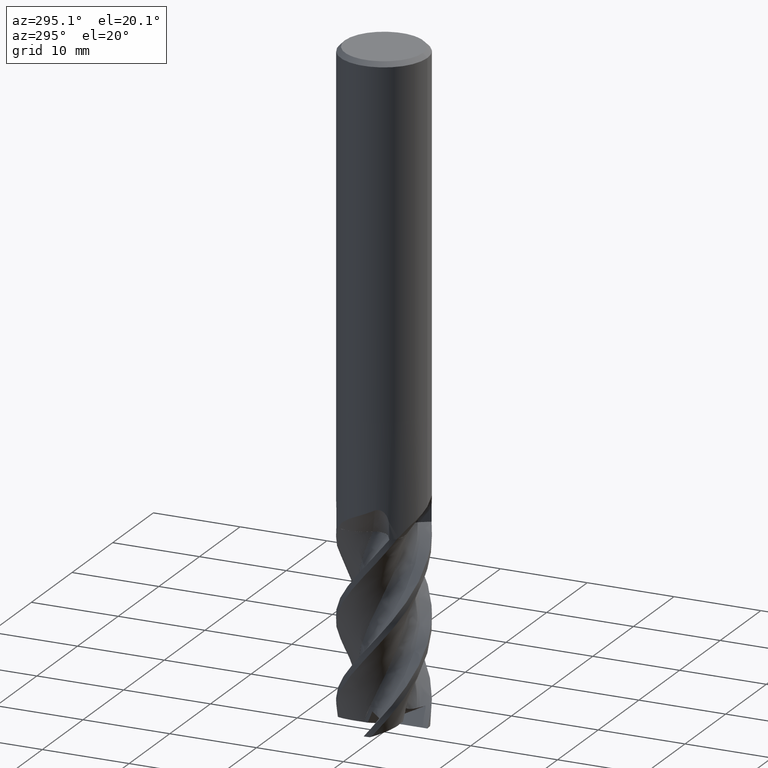
[diagram: clean part render]
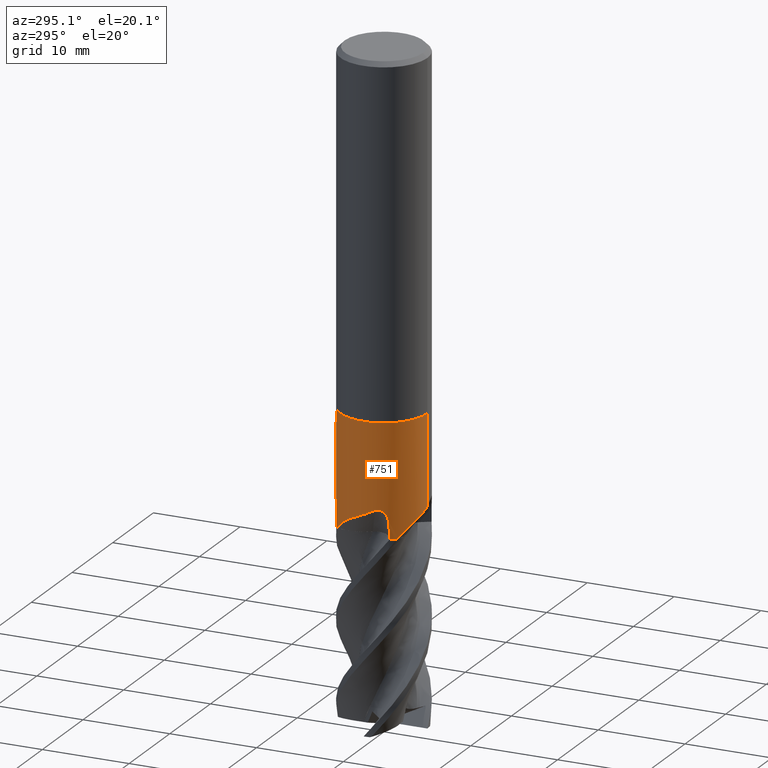
[diagram: same view with one face highlighted and labeled with its STEP entity id]
A machine part, auxiliary view. The second image highlights one B-rep face of the part: STEP entity #751.
In plain terms, the highlighted cylindrical surface (partial cylindrical patch) has radius 5 mm, axis along (-0, -0, 1).
Its self-contained STEP definition (entity closure, byte-faithful):
#563=EDGE_CURVE('',#785,#1473,#1554,.T.);
#583=VERTEX_POINT('',#1576);
#597=VERTEX_POINT('',#1591);
#601=EDGE_CURVE('',#769,#641,#1595,.T.);
#641=VERTEX_POINT('',#1641);
#645=EDGE_CURVE('',#583,#1305,#1645,.T.);
#655=VERTEX_POINT('',#1655);
#741=EDGE_CURVE('',#1101,#981,#1745,.T.);
#751=ADVANCED_FACE('',(#1755),#1756,.T.);
#769=VERTEX_POINT('',#1775);
#785=VERTEX_POINT('',#1793);
#789=EDGE_CURVE('',#1247,#655,#1797,.T.);
#843=EDGE_CURVE('',#785,#583,#1858,.T.);
#905=EDGE_CURVE('',#981,#769,#1929,.T.);
#921=EDGE_CURVE('',#1305,#1021,#1945,.T.);
#981=VERTEX_POINT('',#2010);
#1021=VERTEX_POINT('',#2055);
#1031=EDGE_CURVE('',#655,#1213,#2065,.T.);
#1101=VERTEX_POINT('',#2139);
#1113=EDGE_CURVE('',#1021,#1101,#2152,.T.);
#1213=VERTEX_POINT('',#2260);
#1247=VERTEX_POINT('',#2300);
#1291=EDGE_CURVE('',#641,#597,#2348,.T.);
#1305=VERTEX_POINT('',#2362);
#1323=EDGE_CURVE('',#1213,#1393,#2381,.T.);
#1393=VERTEX_POINT('',#2459);
#1401=EDGE_CURVE('',#1393,#1473,#2469,.T.);
#1447=EDGE_CURVE('',#1247,#597,#2519,.T.);
#1473=VERTEX_POINT('',#2548);
#1554=CIRCLE('',#2662,4.99995);
#1576=CARTESIAN_POINT('',(-3.68886555604684,-3.37516976045817,-52.860161555969));
#1591=CARTESIAN_POINT('',(-2.61530968308066,4.2614147021951,-53.0000000000025));
#1595=B_SPLINE_CURVE_WITH_KNOTS('',3,(#2716,#2717,#2718,#2719,#2720,#2721,#2722,#2723,#2724,#2725,#2726,#2727,#2728,#2729),.UNSPECIFIED.,.F.,.F.,(4,2,2,2,2,2,4),(0.0,0.368021234225704,0.690168312708314,1.04161434568756,1.52533306883995,2.03424446128364,2.56661132870073),.UNSPECIFIED.);
#1641=CARTESIAN_POINT('',(-2.58555588287669,4.27953277578543,-51.3543805685912));
#1645=B_SPLINE_CURVE_WITH_KNOTS('',3,(#3199,#3200,#3201,#3202,#3203,#3204,#3205,#3206,#3207,#3208),.UNSPECIFIED.,.F.,.F.,(4,2,2,2,4),(0.0,1.50417225078424,3.25372376127269,4.87123428510197,6.31669153548033),.UNSPECIFIED.);
#1655=CARTESIAN_POINT('',(-3.37516976045826,3.68886555604675,-52.8601615559688));
#1745=LINE('',#3948,#3949);
#1755=FACE_OUTER_BOUND('',#3963,.T.);
#1756=CYLINDRICAL_SURFACE('',#3964,4.99995);
#1775=CARTESIAN_POINT('',(-1.20676391607417,4.85213570022123,-49.7639396090505));
#1793=CARTESIAN_POINT('',(-3.79543673596563,-3.25486712260002,-53.0));
#1797=B_SPLINE_CURVE_WITH_KNOTS('',3,(#4038,#4039,#4040,#4041),.UNSPECIFIED.,.F.,.F.,(4,4),(0.0,0.207010713968052),.UNSPECIFIED.);
#1858=B_SPLINE_CURVE_WITH_KNOTS('',3,(#4556,#4557,#4558,#4559),.UNSPECIFIED.,.F.,.F.,(4,4),(0.0,0.207010713968483),.UNSPECIFIED.);
#1929=B_SPLINE_CURVE_WITH_KNOTS('',3,(#5011,#5012,#5013,#5014,#5015,#5016,#5017,#5018,#5019,#5020),.UNSPECIFIED.,.F.,.F.,(4,2,2,2,4),(0.0,1.50417225078434,3.25372376127297,4.87123428510244,6.31669153548075),.UNSPECIFIED.);
#1945=LINE('',#5083,#5084);
#2010=CARTESIAN_POINT('',(3.35758745432331E-015,4.99994999999999,-50.3361821708165));
#2055=CARTESIAN_POINT('',(6.12297053879419E-016,-4.99995,-40.0));
#2065=B_SPLINE_CURVE_WITH_KNOTS('',3,(#6126,#6127,#6128,#6129,#6130,#6131,#6132,#6133,#6134,#6135),.UNSPECIFIED.,.F.,.F.,(4,2,2,2,4),(0.0,1.50417225078443,3.25372376127318,4.87123428510273,6.31669153548111),.UNSPECIFIED.);
#2139=CARTESIAN_POINT('',(0.0,4.99995,-40.0));
#2152=CIRCLE('',#6689,4.99995);
#2260=CARTESIAN_POINT('',(-4.85213570022123,-1.20676391607417,-49.7639396090505));
#2300=CARTESIAN_POINT('',(-3.2548671226,3.79543673596565,-53.0));
#2348=B_SPLINE_CURVE_WITH_KNOTS('',3,(#7724,#7725,#7726,#7727),.UNSPECIFIED.,.F.,.F.,(4,4),(0.0,1.64590909495895),.UNSPECIFIED.);
#2362=CARTESIAN_POINT('',(2.24903882003373E-015,-4.99995,-50.3361821708165));
#2381=B_SPLINE_CURVE_WITH_KNOTS('',3,(#7930,#7931,#7932,#7933,#7934,#7935,#7936,#7937,#7938,#7939,#7940,#7941,#7942,#7943),.UNSPECIFIED.,.F.,.F.,(4,2,2,2,2,2,4),(0.0,0.368021234225706,0.690168312708371,1.04161434568776,1.5253330688402,2.03424446128394,2.56661132870107),.UNSPECIFIED.);
#2459=CARTESIAN_POINT('',(-4.27953277578543,-2.58555588287669,-51.3543805685912));
#2469=B_SPLINE_CURVE_WITH_KNOTS('',3,(#8926,#8927,#8928,#8929),.UNSPECIFIED.,.F.,.F.,(4,4),(0.0,1.64590909495742),.UNSPECIFIED.);
#2519=CIRCLE('',#9677,4.99995);
#2548=CARTESIAN_POINT('',(-4.26141470219513,-2.61530968308061,-53.0));
#2662=AXIS2_PLACEMENT_3D('',#10613,#10614,#10615);
#2716=CARTESIAN_POINT('',(-1.20676391608101,4.85213570021954,-49.7639396093091));
#2717=CARTESIAN_POINT('',(-1.31790027933971,4.82449522162802,-49.7199673413001));
#2718=CARTESIAN_POINT('',(-1.43314786527791,4.79172105558408,-49.6955569586522));
#2719=CARTESIAN_POINT('',(-1.65154633527143,4.7205286684951,-49.7002196019696));
#2720=CARTESIAN_POINT('',(-1.74901421476737,4.68510272734028,-49.722931558861));
#2721=CARTESIAN_POINT('',(-1.94086222654669,4.60913701618907,-49.8106496245136));
#2722=CARTESIAN_POINT('',(-2.0296716032135,4.57025973097051,-49.8772286943761));
#2723=CARTESIAN_POINT('',(-2.21430740980157,4.48444523330693,-50.0669394984034));
#2724=CARTESIAN_POINT('',(-2.29994967947244,4.44021722000674,-50.2014452251253));
#2725=CARTESIAN_POINT('',(-2.43757963582861,4.36624811639421,-50.4942926135726));
#2726=CARTESIAN_POINT('',(-2.48944400244533,4.33634179904609,-50.6573096045461));
#2727=CARTESIAN_POINT('',(-2.56207983125277,4.29384421056909,-50.9962332595191));
#2728=CARTESIAN_POINT('',(-2.58202044050752,4.2816687762076,-51.1755715110276));
#2729=CARTESIAN_POINT('',(-2.58555588279108,4.27953277583716,-51.3543805685921));
#3199=CARTESIAN_POINT('',(-3.68886555551961,-3.3751697610344,-52.8601615547171));
#3200=CARTESIAN_POINT('',(-3.45424894795995,-3.63159215861907,-52.4987818570004));
#3201=CARTESIAN_POINT('',(-3.1778581276791,-3.88174251827482,-52.1860532834215));
#3202=CARTESIAN_POINT('',(-2.4500415758896,-4.38440499217625,-51.5708119090101));
#3203=CARTESIAN_POINT('',(-2.0017023972939,-4.61114206998876,-51.2983203781811));
#3204=CARTESIAN_POINT('',(-1.04824569011521,-4.91237378563402,-50.8056417094781));
#3205=CARTESIAN_POINT('',(-0.567254798000686,-4.99171244245109,-50.5916091113473));
#3206=CARTESIAN_POINT('',(0.359295679458403,-5.00616045570662,-50.1744340301728));
#3207=CARTESIAN_POINT('',(0.791112175938387,-4.95551152328949,-49.9784482232667));
#3208=CARTESIAN_POINT('',(1.20676391607416,-4.85213570022123,-49.7639396090505));
#3948=CARTESIAN_POINT('',(-6.12297053879419E-016,4.99995,-46.5));
#3949=VECTOR('',#10830,1.0);
#3963=EDGE_LOOP('',(#10839,#10840,#10841,#10842,#10843,#10844,#10845,#10846,#10847,#10848,#10849,#10850,#10851,#10852));
#3964=AXIS2_PLACEMENT_3D('',#10853,#10854,#10855);
#4038=CARTESIAN_POINT('',(-3.25486712259811,3.79543673596726,-53.0000000000024));
#4039=CARTESIAN_POINT('',(-3.29233102247181,3.76330867680937,-52.9517741057517));
#4040=CARTESIAN_POINT('',(-3.33434386170834,3.72621967937022,-52.9010426995581));
#4041=CARTESIAN_POINT('',(-3.37516976045808,3.68886555604692,-52.8601615559691));
#4556=CARTESIAN_POINT('',(-3.79543673596726,-3.25486712259813,-53.0000000000024));
#4557=CARTESIAN_POINT('',(-3.7633086768093,-3.2923310224719,-52.9517741057516));
#4558=CARTESIAN_POINT('',(-3.72621967937023,-3.33434386170832,-52.9010426995582));
#4559=CARTESIAN_POINT('',(-3.68886555604698,-3.37516976045801,-52.8601615559692));
#5011=CARTESIAN_POINT('',(3.68886555551955,3.37516976103447,-52.8601615547171));
#5012=CARTESIAN_POINT('',(3.45424894795986,3.63159215861915,-52.4987818570003));
#5013=CARTESIAN_POINT('',(3.17785812767901,3.88174251827489,-52.1860532834214));
#5014=CARTESIAN_POINT('',(2.4500415758895,4.3844049921763,-51.57081190901));
#5015=CARTESIAN_POINT('',(2.00170239729378,4.61114206998881,-51.2983203781811));
#5016=CARTESIAN_POINT('',(1.04824569011505,4.91237378563406,-50.805641709478));
#5017=CARTESIAN_POINT('',(0.567254798000494,4.99171244245108,-50.5916091113473));
#5018=CARTESIAN_POINT('',(-0.359295679458298,5.0061604557066,-50.1744340301729));
#5019=CARTESIAN_POINT('',(-0.79111217593836,4.95551152328951,-49.9784482232667));
#5020=CARTESIAN_POINT('',(-1.20676391607418,4.85213570022123,-49.7639396090505));
#5083=CARTESIAN_POINT('',(6.12297053879419E-016,-4.99995,-46.5));
#5084=VECTOR('',#11065,1.0);
#6126=CARTESIAN_POINT('',(-3.37516976103447,3.68886555551955,-52.8601615547171));
#6127=CARTESIAN_POINT('',(-3.63159215861916,3.45424894795985,-52.4987818570003));
#6128=CARTESIAN_POINT('',(-3.88174251827489,3.177858127679,-52.1860532834214));
#6129=CARTESIAN_POINT('',(-4.3844049921763,2.45004157588951,-51.57081190901));
#6130=CARTESIAN_POINT('',(-4.61114206998881,2.0017023972938,-51.2983203781811));
#6131=CARTESIAN_POINT('',(-4.91237378563406,1.04824569011505,-50.805641709478));
#6132=CARTESIAN_POINT('',(-4.99171244245108,0.567254798000495,-50.5916091113473));
#6133=CARTESIAN_POINT('',(-5.0061604557066,-0.359295679458299,-50.1744340301729));
#6134=CARTESIAN_POINT('',(-4.95551152328951,-0.79111217593836,-49.9784482232667));
#6135=CARTESIAN_POINT('',(-4.85213570022123,-1.20676391607418,-49.7639396090505));
#6689=AXIS2_PLACEMENT_3D('',#11300,#11301,#11302);
#7724=CARTESIAN_POINT('',(-2.58555588287666,4.27953277578545,-51.3543805685912));
#7725=CARTESIAN_POINT('',(-2.59640071864889,4.27298067526448,-51.9028706054207));
#7726=CARTESIAN_POINT('',(-2.60633088109054,4.26692516044154,-52.4514625056961));
#7727=CARTESIAN_POINT('',(-2.61530968308066,4.2614147021951,-53.0000000000025));
#7930=CARTESIAN_POINT('',(-4.85213570021954,-1.20676391608101,-49.7639396093091));
#7931=CARTESIAN_POINT('',(-4.82449522162802,-1.31790027933971,-49.7199673413001));
#7932=CARTESIAN_POINT('',(-4.79172105558408,-1.43314786527791,-49.6955569586522));
#7933=CARTESIAN_POINT('',(-4.7205286684951,-1.65154633527145,-49.7002196019696));
#7934=CARTESIAN_POINT('',(-4.68510272734027,-1.7490142147674,-49.722931558861));
#7935=CARTESIAN_POINT('',(-4.60913701618908,-1.94086222654667,-49.8106496245136));
#7936=CARTESIAN_POINT('',(-4.57025973097052,-2.02967160321348,-49.8772286943761));
#7937=CARTESIAN_POINT('',(-4.48444523330693,-2.21430740980157,-50.0669394984034));
#7938=CARTESIAN_POINT('',(-4.44021722000674,-2.29994967947244,-50.2014452251253));
#7939=CARTESIAN_POINT('',(-4.36624811639421,-2.43757963582861,-50.4942926135726));
#7940=CARTESIAN_POINT('',(-4.33634179904609,-2.48944400244533,-50.6573096045461));
#7941=CARTESIAN_POINT('',(-4.29384421056908,-2.56207983125277,-50.9962332595191));
#7942=CARTESIAN_POINT('',(-4.2816687762076,-2.58202044050752,-51.1755715110276));
#7943=CARTESIAN_POINT('',(-4.27953277583716,-2.58555588279108,-51.3543805685921));
#8926=CARTESIAN_POINT('',(-4.27953277578545,-2.58555588287666,-51.3543805685912));
#8927=CARTESIAN_POINT('',(-4.27298067526449,-2.59640071864888,-51.9028706054202));
#8928=CARTESIAN_POINT('',(-4.26692516044155,-2.60633088109054,-52.4514625056959));
#8929=CARTESIAN_POINT('',(-4.2614147021951,-2.61530968308066,-53.0000000000026));
#9677=AXIS2_PLACEMENT_3D('',#11681,#11682,#11683);
#10613=CARTESIAN_POINT('',(0.0,0.0,-53.0));
#10614=DIRECTION('',(0.0,0.0,-1.0));
#10615=DIRECTION('',(0.0,1.0,0.0));
#10830=DIRECTION('',(0.0,0.0,-1.0));
#10839=ORIENTED_EDGE('',*,*,#741,.T.);
#10840=ORIENTED_EDGE('',*,*,#905,.T.);
#10841=ORIENTED_EDGE('',*,*,#601,.T.);
#10842=ORIENTED_EDGE('',*,*,#1291,.T.);
#10843=ORIENTED_EDGE('',*,*,#1447,.F.);
#10844=ORIENTED_EDGE('',*,*,#789,.T.);
#10845=ORIENTED_EDGE('',*,*,#1031,.T.);
#10846=ORIENTED_EDGE('',*,*,#1323,.T.);
#10847=ORIENTED_EDGE('',*,*,#1401,.T.);
#10848=ORIENTED_EDGE('',*,*,#563,.F.);
#10849=ORIENTED_EDGE('',*,*,#843,.T.);
#10850=ORIENTED_EDGE('',*,*,#645,.T.);
#10851=ORIENTED_EDGE('',*,*,#921,.T.);
#10852=ORIENTED_EDGE('',*,*,#1113,.T.);
#10853=CARTESIAN_POINT('',(0.0,0.0,-46.5));
#10854=DIRECTION('',(-0.0,-0.0,1.0));
#10855=DIRECTION('',(0.0,1.0,0.0));
#11065=DIRECTION('',(-0.0,-0.0,1.0));
#11300=CARTESIAN_POINT('',(0.0,0.0,-40.0));
#11301=DIRECTION('',(0.0,0.0,-1.0));
#11302=DIRECTION('',(0.0,1.0,0.0));
#11681=CARTESIAN_POINT('',(0.0,0.0,-53.0));
#11682=DIRECTION('',(0.0,0.0,-1.0));
#11683=DIRECTION('',(0.0,1.0,0.0));